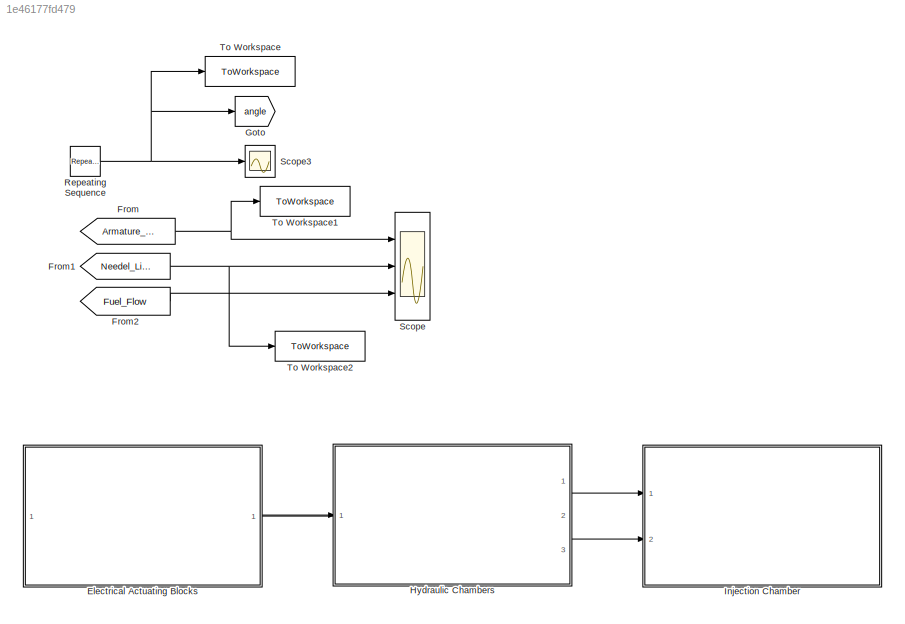
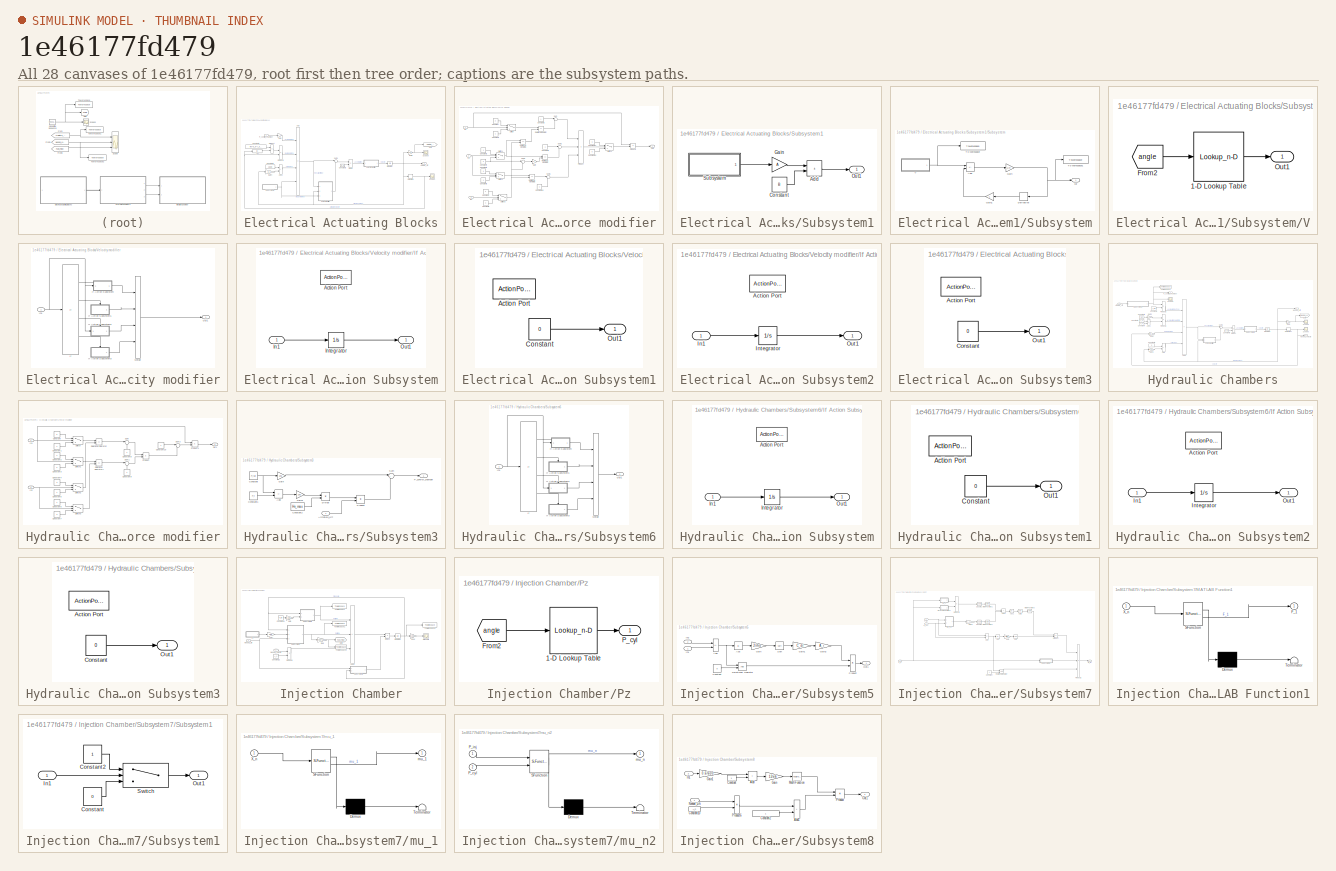
[diagram: thumbnail index - all 28 canvases of the model, root first then tree order]
MODEL slx_1e46177fd479
KIND model
CONFIG AbsTol = auto
CONFIG EnableMultiTasking = off
CONFIG FixedStep = 1e-6
CONFIG MaxStep = auto
CONFIG MinStep = auto
CONFIG RelTol = 1e-3
CONFIG SampleTimeConstraint = Unconstrained
CONFIG Solver = FixedStepAuto
CONFIG SolverName = FixedStepAuto
CONFIG StartTime = 0.0
CONFIG StopTime = 0.02
BLOCK [SubSystem] Electrical Actuating Blocks
  PortSchema = {"entries":[{"content":{"sides":[{"content":{"connectorIds":[]},"type":"ConnectorPlacement.EquallySpacedRectSide","uuid":"3ba77c4c-b8ba-4d77-9d68-8710a2d773ab"},{"content":{"connectorIds":["In1","Out1"],"side":"RIGHT"},"type":"ConnectorPlacement.EquallySpacedRectSide","uuid":"fd57f4f6-7259-4663-815b-091bcd4e1737"},{"content":{"connectorIds":[],"side":"TOP"},"type":"ConnectorPlacement.EquallySpaced...<+243ch>
  Ports = [1, 1]
  RequestExecContextInheritance = off
BLOCK [Abs] Electrical Actuating Blocks/Abs
  SaturateOnIntegerOverflow = off
BLOCK [Sum] Electrical Actuating Blocks/Add
  IconShape = rectangular
  Inputs = +--+
  Ports = [4, 1]
BLOCK [Sum] Electrical Actuating Blocks/Add1
  IconShape = rectangular
  Ports = [2, 1]
BLOCK [Outport] Electrical Actuating Blocks/Armature_Lift
BLOCK [Constant] Electrical Actuating Blocks/Constant1
  Value = rho*b_b*A_p/2
BLOCK [Constant] Electrical Actuating Blocks/Constant2
  Value = 1500
BLOCK [Constant] Electrical Actuating Blocks/Constant3
  Value = m_a
BLOCK [Derivative] Electrical Actuating Blocks/Derivative
BLOCK [Product] Electrical Actuating Blocks/Divide
  Inputs = */
  Ports = [2, 1]
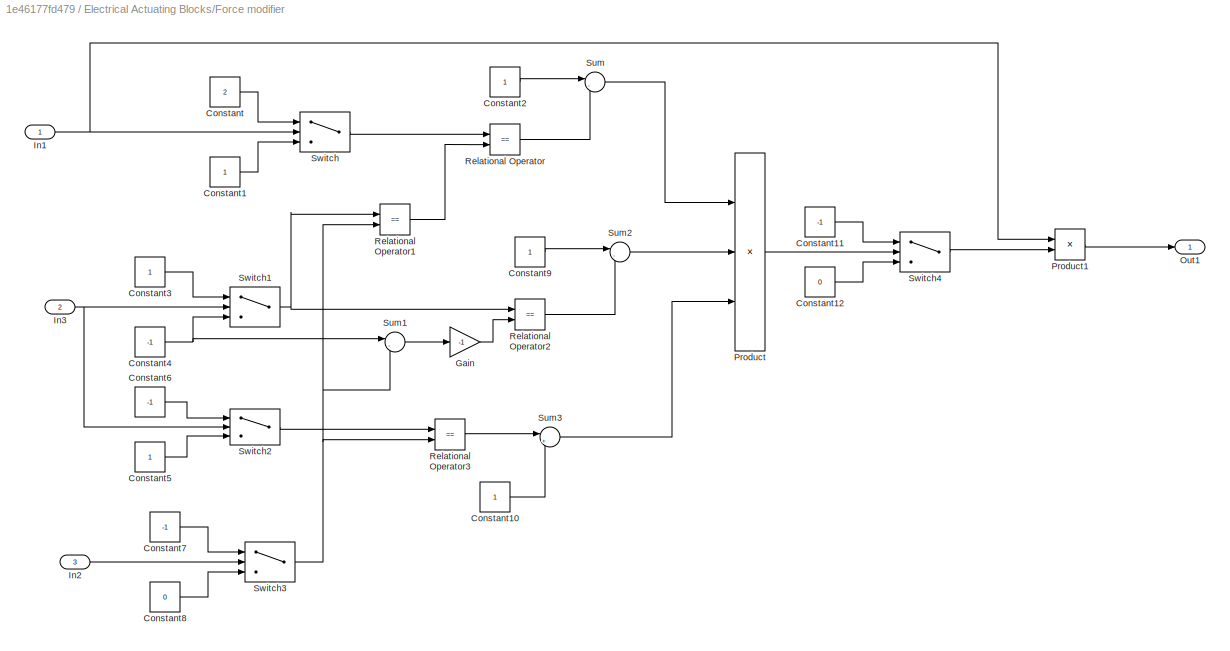
BLOCK [SubSystem] Electrical Actuating Blocks/Force modifier
  Ports = [3, 1]
  RequestExecContextInheritance = off
BLOCK [Constant] Electrical Actuating Blocks/Force modifier/Constant
  Value = 2
BLOCK [Constant] Electrical Actuating Blocks/Force modifier/Constant1
BLOCK [Constant] Electrical Actuating Blocks/Force modifier/Constant10
BLOCK [Constant] Electrical Actuating Blocks/Force modifier/Constant11
  Value = -1
BLOCK [Constant] Electrical Actuating Blocks/Force modifier/Constant12
  Value = 0
BLOCK [Constant] Electrical Actuating Blocks/Force modifier/Constant2
BLOCK [Constant] Electrical Actuating Blocks/Force modifier/Constant3
BLOCK [Constant] Electrical Actuating Blocks/Force modifier/Constant4
  Value = -1
BLOCK [Constant] Electrical Actuating Blocks/Force modifier/Constant5
BLOCK [Constant] Electrical Actuating Blocks/Force modifier/Constant6
  Value = -1
BLOCK [Constant] Electrical Actuating Blocks/Force modifier/Constant7
  Value = -1
BLOCK [Constant] Electrical Actuating Blocks/Force modifier/Constant8
  Value = 0
BLOCK [Constant] Electrical Actuating Blocks/Force modifier/Constant9
BLOCK [Gain] Electrical Actuating Blocks/Force modifier/Gain
  Gain = -1
BLOCK [Inport] Electrical Actuating Blocks/Force modifier/In1
BLOCK [Inport] Electrical Actuating Blocks/Force modifier/In2
  Port = 3
BLOCK [Inport] Electrical Actuating Blocks/Force modifier/In3
  Port = 2
BLOCK [Outport] Electrical Actuating Blocks/Force modifier/Out1
BLOCK [Product] Electrical Actuating Blocks/Force modifier/Product
  Inputs = 3
  Ports = [3, 1]
BLOCK [Product] Electrical Actuating Blocks/Force modifier/Product1
  Ports = [2, 1]
BLOCK [RelationalOperator] Electrical Actuating Blocks/Force modifier/Relational Operator
  InputSameDT = off
  Operator = ==
  OutDataTypeStr = boolean
  Ports = [2, 1]
  RndMeth = Simplest
BLOCK [RelationalOperator] Electrical Actuating Blocks/Force modifier/Relational Operator1
  InputSameDT = off
  Operator = ==
  OutDataTypeStr = boolean
  Ports = [2, 1]
  RndMeth = Simplest
BLOCK [RelationalOperator] Electrical Actuating Blocks/Force modifier/Relational Operator2
  InputSameDT = off
  Operator = ==
  OutDataTypeStr = boolean
  Ports = [2, 1]
  RndMeth = Simplest
BLOCK [RelationalOperator] Electrical Actuating Blocks/Force modifier/Relational Operator3
  InputSameDT = off
  Operator = ==
  OutDataTypeStr = boolean
  Ports = [2, 1]
  RndMeth = Simplest
BLOCK [Sum] Electrical Actuating Blocks/Force modifier/Sum
  Inputs = |-+
  Ports = [2, 1]
BLOCK [Sum] Electrical Actuating Blocks/Force modifier/Sum1
  Inputs = |-+
  Ports = [2, 1]
BLOCK [Sum] Electrical Actuating Blocks/Force modifier/Sum2
  Inputs = |-+
  Ports = [2, 1]
BLOCK [Sum] Electrical Actuating Blocks/Force modifier/Sum3
  Inputs = |+-
  Ports = [2, 1]
BLOCK [Switch] Electrical Actuating Blocks/Force modifier/Switch
  Criteria = u2 > Threshold
  InputSameDT = off
  SaturateOnIntegerOverflow = off
BLOCK [Switch] Electrical Actuating Blocks/Force modifier/Switch1
  Criteria = u2 > Threshold
  InputSameDT = off
  SaturateOnIntegerOverflow = off
BLOCK [Switch] Electrical Actuating Blocks/Force modifier/Switch2
  InputSameDT = off
  SaturateOnIntegerOverflow = off
  Threshold = Hv_max
BLOCK [Switch] Electrical Actuating Blocks/Force modifier/Switch3
  Criteria = u2 > Threshold
  InputSameDT = off
  SaturateOnIntegerOverflow = off
BLOCK [Switch] Electrical Actuating Blocks/Force modifier/Switch4
  InputSameDT = off
  SaturateOnIntegerOverflow = off
BLOCK [Gain] Electrical Actuating Blocks/Gain
  Gain = A_v
BLOCK [Gain] Electrical Actuating Blocks/Gain4
  Gain = K_v
BLOCK [Goto] Electrical Actuating Blocks/Goto
  GotoTag = Armature_Lift
  TagVisibility = global
BLOCK [Integrator] Electrical Actuating Blocks/Integrator
  LimitOutput = on
  LowerSaturationLimit = 0
  Ports = [1, 1]
  UpperSaturationLimit = Hv_max
BLOCK [Inport] Electrical Actuating Blocks/P_control_chamber
BLOCK [Product] Electrical Actuating Blocks/Product
  Ports = [2, 1]
BLOCK [Product] Electrical Actuating Blocks/Product1
  Ports = [2, 1]
BLOCK [Scope] Electrical Actuating Blocks/Scope1
  Floating = off
  NumInputPorts = 1
  Ports = [1]
  ScopeSpecificationString = Simulink.scopes.TimeScopeBlockCfg('CurrentConfiguration', extmgr.ConfigurationSet(extmgr.Configuration('Core','General UI',true),extmgr.Configuration('Core','Source UI',true),extmgr.Configuration('Sources','WiredSimulink',true,'DataLoggingVariableName','ScopeData8'),extmgr.Configuration('Visuals','Time Domain',true,'SerializedDisplays',{struct('MinYLimReal','-1.00036','MaxYLimReal','1.97766','YLab...<+1412ch>
BLOCK [Scope] Electrical Actuating Blocks/Scope9
  Floating = off
  NumInputPorts = 1
  Ports = [1]
  ScopeSpecificationString = Simulink.scopes.TimeScopeBlockCfg('CurrentConfiguration', extmgr.ConfigurationSet(extmgr.Configuration('Core','General UI',true),extmgr.Configuration('Core','Source UI',true),extmgr.Configuration('Sources','WiredSimulink',true,'DataLoggingVariableName','ScopeData9'),extmgr.Configuration('Visuals','Time Domain',true,'SerializedDisplays',{struct('MinYLimReal','-0.065','MaxYLimReal','0.585','YLabelRe...<+1429ch>
BLOCK [SubSystem] Electrical Actuating Blocks/Subsystem1
  Ports = [0, 1]
  RequestExecContextInheritance = off
BLOCK [Sum] Electrical Actuating Blocks/Subsystem1/Add
  IconShape = rectangular
  Ports = [2, 1]
BLOCK [Constant] Electrical Actuating Blocks/Subsystem1/Constant
  Value = B
BLOCK [Gain] Electrical Actuating Blocks/Subsystem1/Gain
  Gain = A
BLOCK [Outport] Electrical Actuating Blocks/Subsystem1/Out1
BLOCK [SubSystem] Electrical Actuating Blocks/Subsystem1/Subsystem
  Ports = [0, 1]
  RequestExecContextInheritance = off
BLOCK [Sum] Electrical Actuating Blocks/Subsystem1/Subsystem/Add
  IconShape = rectangular
  Inputs = +-
  Ports = [2, 1]
BLOCK [Derivative] Electrical Actuating Blocks/Subsystem1/Subsystem/Derivative
BLOCK [Gain] Electrical Actuating Blocks/Subsystem1/Subsystem/Gain
  Gain = 1/R
BLOCK [Gain] Electrical Actuating Blocks/Subsystem1/Subsystem/Gain1
  Gain = L
BLOCK [ToWorkspace] Electrical Actuating Blocks/Subsystem1/Subsystem/To Workspace
  FixptAsFi = on
  MaxDataPoints = inf
  Ports = [1]
  SampleTime = -1
  SaveFormat = Timeseries
  VariableName = V
BLOCK [ToWorkspace] Electrical Actuating Blocks/Subsystem1/Subsystem/To Workspace1
  FixptAsFi = on
  MaxDataPoints = inf
  Ports = [1]
  SampleTime = -1
  SaveFormat = Timeseries
  VariableName = I
BLOCK [SubSystem] Electrical Actuating Blocks/Subsystem1/Subsystem/V
  Ports = [0, 1]
  RequestExecContextInheritance = off
BLOCK [Lookup_n-D] Electrical Actuating Blocks/Subsystem1/Subsystem/V/1-D Lookup Table
  BreakpointsForDimension1 = angl_inj
  InternalRulePriority = Speed
  NumberOfTableDimensions = 1
  Ports = [1, 1]
  RndMeth = Simplest
  Table = V_inj
BLOCK [From] Electrical Actuating Blocks/Subsystem1/Subsystem/V/From2
  GotoTag = angle
  TagVisibility = global
BLOCK [Outport] Electrical Actuating Blocks/Subsystem1/Subsystem/V/Out1
BLOCK [Outport] Electrical Actuating Blocks/Subsystem1/Subsystem/cur
BLOCK [Sum] Electrical Actuating Blocks/Sum1
  Inputs = |++
  Ports = [2, 1]
BLOCK [SubSystem] Electrical Actuating Blocks/Velocity modifier
  Ports = [1, 1]
  RequestExecContextInheritance = off
BLOCK [If] Electrical Actuating Blocks/Velocity modifier/If
  ElseIfExpressions = u1 == 0, u1 > 0
  IfExpression = u1 < 0
  Ports = [1, 4]
BLOCK [SubSystem] Electrical Actuating Blocks/Velocity modifier/If Action Subsystem
  Ports = [1, 1, 0, 0, 0, 0, 0, 1]
  RequestExecContextInheritance = off
  TreatAsAtomicUnit = on
BLOCK [ActionPort] Electrical Actuating Blocks/Velocity modifier/If Action Subsystem/Action Port
  ActionPortLabel = if(u1 < 0)
BLOCK [Inport] Electrical Actuating Blocks/Velocity modifier/If Action Subsystem/In1
BLOCK [Integrator] Electrical Actuating Blocks/Velocity modifier/If Action Subsystem/Integrator
  Ports = [1, 1]
BLOCK [Outport] Electrical Actuating Blocks/Velocity modifier/If Action Subsystem/Out1
BLOCK [SubSystem] Electrical Actuating Blocks/Velocity modifier/If Action Subsystem1
  Ports = [0, 1, 0, 0, 0, 0, 0, 1]
  RequestExecContextInheritance = off
  TreatAsAtomicUnit = on
BLOCK [ActionPort] Electrical Actuating Blocks/Velocity modifier/If Action Subsystem1/Action Port
  ActionPortLabel = elseif(u1 == 0)
BLOCK [Constant] Electrical Actuating Blocks/Velocity modifier/If Action Subsystem1/Constant
  Value = 0
BLOCK [Outport] Electrical Actuating Blocks/Velocity modifier/If Action Subsystem1/Out1
BLOCK [SubSystem] Electrical Actuating Blocks/Velocity modifier/If Action Subsystem2
  Ports = [1, 1, 0, 0, 0, 0, 0, 1]
  RequestExecContextInheritance = off
  TreatAsAtomicUnit = on
BLOCK [ActionPort] Electrical Actuating Blocks/Velocity modifier/If Action Subsystem2/Action Port
  ActionPortLabel = elseif( u1 > 0)
BLOCK [Inport] Electrical Actuating Blocks/Velocity modifier/If Action Subsystem2/In1
BLOCK [Integrator] Electrical Actuating Blocks/Velocity modifier/If Action Subsystem2/Integrator
  Ports = [1, 1]
BLOCK [Outport] Electrical Actuating Blocks/Velocity modifier/If Action Subsystem2/Out1
BLOCK [SubSystem] Electrical Actuating Blocks/Velocity modifier/If Action Subsystem3
  Ports = [0, 1, 0, 0, 0, 0, 0, 1]
  RequestExecContextInheritance = off
  TreatAsAtomicUnit = on
BLOCK [ActionPort] Electrical Actuating Blocks/Velocity modifier/If Action Subsystem3/Action Port
  ActionPortLabel = else
BLOCK [Constant] Electrical Actuating Blocks/Velocity modifier/If Action Subsystem3/Constant
  Value = 0
BLOCK [Outport] Electrical Actuating Blocks/Velocity modifier/If Action Subsystem3/Out1
BLOCK [Inport] Electrical Actuating Blocks/Velocity modifier/In1
BLOCK [Merge] Electrical Actuating Blocks/Velocity modifier/Merge
  Inputs = 4
  Ports = [4, 1]
BLOCK [Outport] Electrical Actuating Blocks/Velocity modifier/Out1
BLOCK [Gain] Electrical Actuating Blocks/in mm
  Gain = 1e3
BLOCK [From] From
  GotoTag = Armature_Lift
  TagVisibility = global
BLOCK [From] From1
  GotoTag = Needel_Lift
  TagVisibility = global
BLOCK [From] From2
  GotoTag = Fuel_Flow
  TagVisibility = global
BLOCK [Goto] Goto
  GotoTag = angle
  TagVisibility = global
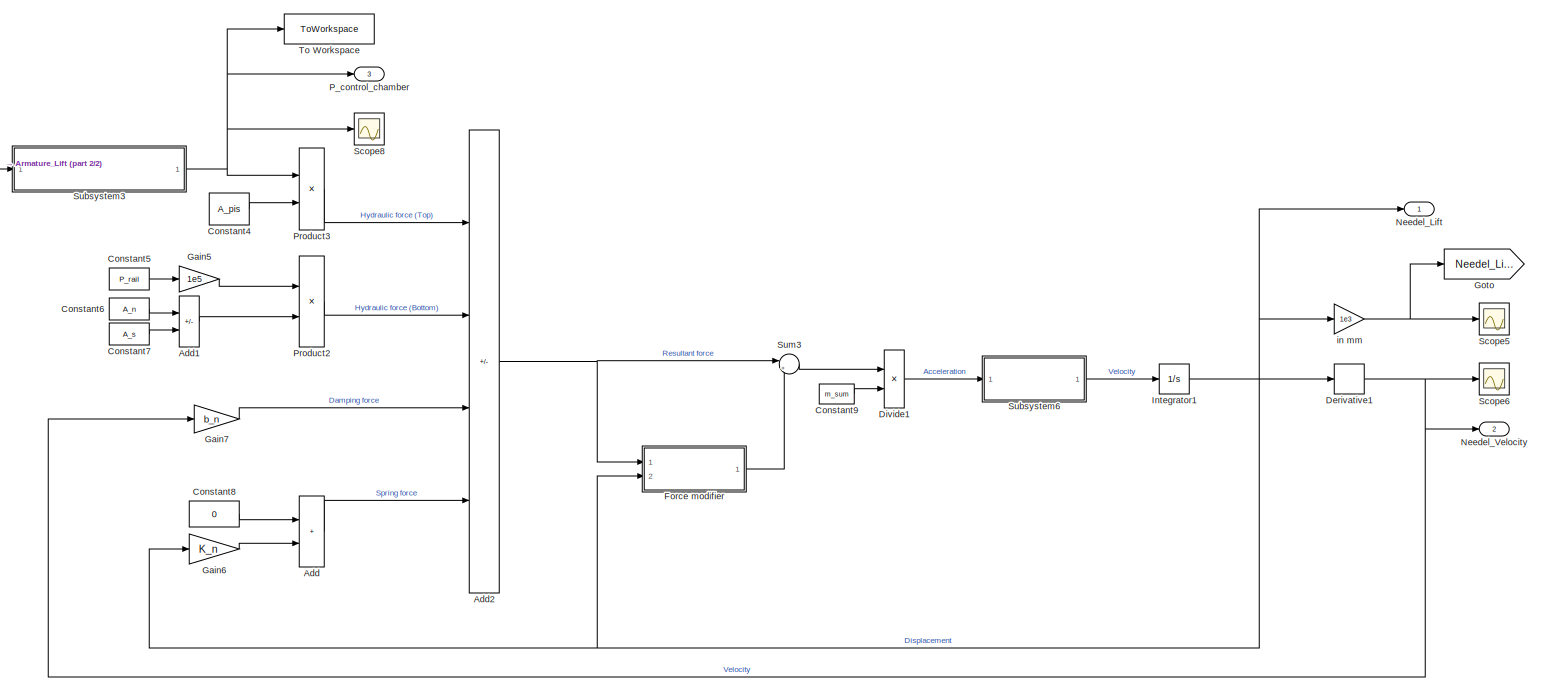
[diagram: Hydraulic Chambers - part 1/2, most of the canvas]
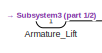
[diagram: Hydraulic Chambers - part 2/2, top left region]
BLOCK [SubSystem] Hydraulic Chambers
  PortSchema = {"entries":[{"content":{"sides":[{"content":{"connectorIds":["Out3","In1"]},"type":"ConnectorPlacement.EquallySpacedRectSide","uuid":"e260e5f4-acfe-4da7-b401-bae8e315cc37"},{"content":{"connectorIds":["Out1","Out2"],"side":"RIGHT"},"type":"ConnectorPlacement.EquallySpacedRectSide","uuid":"01019c56-b8d4-4519-8d57-ed1d2bc069d1"},{"content":{"connectorIds":[],"side":"TOP"},"type":"ConnectorPlacement....<+256ch>
  Ports = [1, 3]
  RequestExecContextInheritance = off
BLOCK [Sum] Hydraulic Chambers/Add
  IconShape = rectangular
  Ports = [2, 1]
BLOCK [Sum] Hydraulic Chambers/Add1
  IconShape = rectangular
  Inputs = +-
  Ports = [2, 1]
BLOCK [Sum] Hydraulic Chambers/Add2
  IconShape = rectangular
  Inputs = -+--
  Ports = [4, 1]
BLOCK [Inport] Hydraulic Chambers/Armature_Lift
BLOCK [Constant] Hydraulic Chambers/Constant4
  Value = A_pis
BLOCK [Constant] Hydraulic Chambers/Constant5
  Value = P_rail
BLOCK [Constant] Hydraulic Chambers/Constant6
  Value = A_n
BLOCK [Constant] Hydraulic Chambers/Constant7
  Value = A_s
BLOCK [Constant] Hydraulic Chambers/Constant8
  Value = 0
BLOCK [Constant] Hydraulic Chambers/Constant9
  Value = m_sum
BLOCK [Derivative] Hydraulic Chambers/Derivative1
BLOCK [Product] Hydraulic Chambers/Divide1
  Inputs = */
  Ports = [2, 1]
BLOCK [SubSystem] Hydraulic Chambers/Force modifier
  Ports = [2, 1]
  RequestExecContextInheritance = off
BLOCK [Constant] Hydraulic Chambers/Force modifier/Constant
  Value = -1
BLOCK [Constant] Hydraulic Chambers/Force modifier/Constant1
BLOCK [Constant] Hydraulic Chambers/Force modifier/Constant10
BLOCK [Constant] Hydraulic Chambers/Force modifier/Constant2
BLOCK [Constant] Hydraulic Chambers/Force modifier/Constant3
  Value = -1
BLOCK [Constant] Hydraulic Chambers/Force modifier/Constant4
  Value = 2
BLOCK [Constant] Hydraulic Chambers/Force modifier/Constant5
BLOCK [Constant] Hydraulic Chambers/Force modifier/Constant6
BLOCK [Constant] Hydraulic Chambers/Force modifier/Constant7
  Value = 2
BLOCK [Constant] Hydraulic Chambers/Force modifier/Constant8
  NameLocation = right
BLOCK [Constant] Hydraulic Chambers/Force modifier/Constant9
  NameLocation = right
BLOCK [Inport] Hydraulic Chambers/Force modifier/In1
BLOCK [Inport] Hydraulic Chambers/Force modifier/In2
  Port = 2
BLOCK [Outport] Hydraulic Chambers/Force modifier/Out1
BLOCK [Product] Hydraulic Chambers/Force modifier/Product
  Ports = [2, 1]
BLOCK [Product] Hydraulic Chambers/Force modifier/Product1
  Ports = [2, 1]
BLOCK [RelationalOperator] Hydraulic Chambers/Force modifier/Relational Operator
  InputSameDT = off
  Operator = ==
  OutDataTypeStr = boolean
  Ports = [2, 1]
  RndMeth = Simplest
BLOCK [RelationalOperator] Hydraulic Chambers/Force modifier/Relational Operator1
  InputSameDT = off
  Operator = ==
  OutDataTypeStr = boolean
  Ports = [2, 1]
  RndMeth = Simplest
BLOCK [Sum] Hydraulic Chambers/Force modifier/Sum
  Inputs = |+-
  Ports = [2, 1]
BLOCK [Sum] Hydraulic Chambers/Force modifier/Sum1
  Inputs = |+-
  Ports = [2, 1]
BLOCK [Sum] Hydraulic Chambers/Force modifier/Sum2
  Inputs = |-+
  Ports = [2, 1]
BLOCK [Switch] Hydraulic Chambers/Force modifier/Switch
  Criteria = u2 > Threshold
  InputSameDT = off
  SaturateOnIntegerOverflow = off
BLOCK [Switch] Hydraulic Chambers/Force modifier/Switch1
  Criteria = u2 > Threshold
  InputSameDT = off
  SaturateOnIntegerOverflow = off
BLOCK [Switch] Hydraulic Chambers/Force modifier/Switch2
  Criteria = u2 > Threshold
  InputSameDT = off
  SaturateOnIntegerOverflow = off
BLOCK [Switch] Hydraulic Chambers/Force modifier/Switch3
  InputSameDT = off
  SaturateOnIntegerOverflow = off
  Threshold = Hv_max
BLOCK [Gain] Hydraulic Chambers/Gain5
  Gain = 1e5
BLOCK [Gain] Hydraulic Chambers/Gain6
  Gain = K_n
BLOCK [Gain] Hydraulic Chambers/Gain7
  Gain = b_n
BLOCK [Goto] Hydraulic Chambers/Goto
  GotoTag = Needel_Lift
  TagVisibility = global
BLOCK [Integrator] Hydraulic Chambers/Integrator1
  LimitOutput = on
  LowerSaturationLimit = 0
  Ports = [1, 1]
BLOCK [Outport] Hydraulic Chambers/Needel_Lift
BLOCK [Outport] Hydraulic Chambers/Needel_Velocity
  Port = 2
BLOCK [Outport] Hydraulic Chambers/P_control_chamber
  Port = 3
BLOCK [Product] Hydraulic Chambers/Product2
  Ports = [2, 1]
BLOCK [Product] Hydraulic Chambers/Product3
  Ports = [2, 1]
BLOCK [Scope] Hydraulic Chambers/Scope5
  Floating = off
  NumInputPorts = 1
  Ports = [1]
  ScopeSpecificationString = Simulink.scopes.TimeScopeBlockCfg('CurrentConfiguration', extmgr.ConfigurationSet(extmgr.Configuration('Core','General UI',true),extmgr.Configuration('Core','Source UI',true),extmgr.Configuration('Sources','WiredSimulink',true,'DataLoggingVariableName','ScopeData10'),extmgr.Configuration('Visuals','Time Domain',true,'SerializedDisplays',{struct('MinYLimReal','-0.0412','MaxYLimReal','0.46111','YLab...<+1445ch>
BLOCK [Scope] Hydraulic Chambers/Scope6
  Floating = off
  NumInputPorts = 1
  Ports = [1]
  ScopeSpecificationString = Simulink.scopes.TimeScopeBlockCfg('CurrentConfiguration', extmgr.ConfigurationSet(extmgr.Configuration('Core','General UI',true),extmgr.Configuration('Core','Source UI',true),extmgr.Configuration('Sources','WiredSimulink',true,'DataLoggingVariableName','ScopeData1'),extmgr.Configuration('Visuals','Time Domain',true,'SerializedDisplays',{struct('MinYLimReal','-13.18917','MaxYLimReal','5.63718','YLa...<+1371ch>
BLOCK [Scope] Hydraulic Chambers/Scope8
  Floating = off
  NumInputPorts = 1
  Ports = [1]
  ScopeSpecificationString = Simulink.scopes.TimeScopeBlockCfg('CurrentConfiguration', extmgr.ConfigurationSet(extmgr.Configuration('Core','General UI',true),extmgr.Configuration('Core','Source UI',true),extmgr.Configuration('Sources','WiredSimulink',true,'DataLoggingVariableName','ScopeData11'),extmgr.Configuration('Visuals','Time Domain',true,'SerializedDisplays',{struct('MinYLimReal','-23187500.00000','MaxYLimReal','211189...<+1447ch>
BLOCK [SubSystem] Hydraulic Chambers/Subsystem3
  Ports = [1, 1]
  RequestExecContextInheritance = off
BLOCK [Sum] Hydraulic Chambers/Subsystem3/Add
  IconShape = rectangular
  Inputs = -+
  Ports = [2, 1]
BLOCK [Inport] Hydraulic Chambers/Subsystem3/Armature_Lift
BLOCK [Constant] Hydraulic Chambers/Subsystem3/Constant
  Value = P_rail
BLOCK [Constant] Hydraulic Chambers/Subsystem3/Constant1
  Value = P_t
BLOCK [Constant] Hydraulic Chambers/Subsystem3/Constant2
  Value = Hv_max
BLOCK [Product] Hydraulic Chambers/Subsystem3/Divide
  Inputs = */
  Ports = [2, 1]
BLOCK [Gain] Hydraulic Chambers/Subsystem3/Gain
  Gain = 1e5
BLOCK [Gain] Hydraulic Chambers/Subsystem3/Gain1
  Gain = 1e5
BLOCK [Outport] Hydraulic Chambers/Subsystem3/P_control_chamber
BLOCK [Product] Hydraulic Chambers/Subsystem3/Product
  Ports = [2, 1]
BLOCK [Sum] Hydraulic Chambers/Subsystem3/Sum
  Inputs = |++
  Ports = [2, 1]
BLOCK [SubSystem] Hydraulic Chambers/Subsystem6
  Ports = [1, 1]
  RequestExecContextInheritance = off
BLOCK [If] Hydraulic Chambers/Subsystem6/If
  ElseIfExpressions = u1 == 0, u1 > 0
  IfExpression = u1 < 0
  Ports = [1, 4]
BLOCK [SubSystem] Hydraulic Chambers/Subsystem6/If Action Subsystem
  Ports = [1, 1, 0, 0, 0, 0, 0, 1]
  RequestExecContextInheritance = off
  TreatAsAtomicUnit = on
BLOCK [ActionPort] Hydraulic Chambers/Subsystem6/If Action Subsystem/Action Port
  ActionPortLabel = if(u1 < 0)
BLOCK [Inport] Hydraulic Chambers/Subsystem6/If Action Subsystem/In1
BLOCK [Integrator] Hydraulic Chambers/Subsystem6/If Action Subsystem/Integrator
  Ports = [1, 1]
BLOCK [Outport] Hydraulic Chambers/Subsystem6/If Action Subsystem/Out1
BLOCK [SubSystem] Hydraulic Chambers/Subsystem6/If Action Subsystem1
  Ports = [0, 1, 0, 0, 0, 0, 0, 1]
  RequestExecContextInheritance = off
  TreatAsAtomicUnit = on
BLOCK [ActionPort] Hydraulic Chambers/Subsystem6/If Action Subsystem1/Action Port
  ActionPortLabel = elseif(u1 == 0)
BLOCK [Constant] Hydraulic Chambers/Subsystem6/If Action Subsystem1/Constant
  Value = 0
BLOCK [Outport] Hydraulic Chambers/Subsystem6/If Action Subsystem1/Out1
BLOCK [SubSystem] Hydraulic Chambers/Subsystem6/If Action Subsystem2
  Ports = [1, 1, 0, 0, 0, 0, 0, 1]
  RequestExecContextInheritance = off
  TreatAsAtomicUnit = on
BLOCK [ActionPort] Hydraulic Chambers/Subsystem6/If Action Subsystem2/Action Port
  ActionPortLabel = elseif( u1 > 0)
BLOCK [Inport] Hydraulic Chambers/Subsystem6/If Action Subsystem2/In1
BLOCK [Integrator] Hydraulic Chambers/Subsystem6/If Action Subsystem2/Integrator
  Ports = [1, 1]
BLOCK [Outport] Hydraulic Chambers/Subsystem6/If Action Subsystem2/Out1
BLOCK [SubSystem] Hydraulic Chambers/Subsystem6/If Action Subsystem3
  Ports = [0, 1, 0, 0, 0, 0, 0, 1]
  RequestExecContextInheritance = off
  TreatAsAtomicUnit = on
BLOCK [ActionPort] Hydraulic Chambers/Subsystem6/If Action Subsystem3/Action Port
  ActionPortLabel = else
BLOCK [Constant] Hydraulic Chambers/Subsystem6/If Action Subsystem3/Constant
  Value = 0
BLOCK [Outport] Hydraulic Chambers/Subsystem6/If Action Subsystem3/Out1
BLOCK [Inport] Hydraulic Chambers/Subsystem6/In1
BLOCK [Merge] Hydraulic Chambers/Subsystem6/Merge
  Inputs = 4
  Ports = [4, 1]
BLOCK [Outport] Hydraulic Chambers/Subsystem6/Out1
BLOCK [Sum] Hydraulic Chambers/Sum3
  Inputs = |++
  Ports = [2, 1]
BLOCK [ToWorkspace] Hydraulic Chambers/To Workspace
  FixptAsFi = on
  MaxDataPoints = inf
  Ports = [1]
  SampleTime = -1
  SaveFormat = Timeseries
  VariableName = camera
BLOCK [Gain] Hydraulic Chambers/in mm
  Gain = 1e3
BLOCK [SubSystem] Injection Chamber
  Ports = [2]
  RequestExecContextInheritance = off
BLOCK [Sum] Injection Chamber/Add3
  IconShape = rectangular
  Inputs = +--
  Ports = [3, 1]
BLOCK [Constant] Injection Chamber/Constant11
  Value = P_rail
BLOCK [Constant] Injection Chamber/Constant12
  Value = A_n
BLOCK [Product] Injection Chamber/Divide2
  Inputs = */
  Ports = [2, 1]
BLOCK [Gain] Injection Chamber/Gain
  Gain = 1e5
BLOCK [Gain] Injection Chamber/Gain1
  Gain = 1e5
BLOCK [Goto] Injection Chamber/Goto
  GotoTag = Fuel_Flow
  TagVisibility = global
BLOCK [Integrator] Injection Chamber/Integrator2
  InitialCondition = (P_rail)*1e5
  LimitOutput = on
  LowerSaturationLimit = 1e5
  Ports = [1, 1]
  UpperSaturationLimit = (P_rail)*1e5
BLOCK [Inport] Injection Chamber/Needel_Lift
BLOCK [Inport] Injection Chamber/Needel_Velocity
  Port = 2
BLOCK [Scope] Injection Chamber/Pressure
  Floating = off
  NumInputPorts = 1
  Ports = [1]
  ScopeSpecificationString = Simulink.scopes.TimeScopeBlockCfg('CurrentConfiguration', extmgr.ConfigurationSet(extmgr.Configuration('Core','General UI',true),extmgr.Configuration('Core','Source UI',true),extmgr.Configuration('Sources','WiredSimulink',true,'DataLoggingVariableName','ScopeData14'),extmgr.Configuration('Visuals','Time Domain',true,'SerializedDisplays',{struct('MinYLimReal','-223.875','MaxYLimReal','2024.875','YL...<+1439ch>
BLOCK [Product] Injection Chamber/Product4
  Ports = [2, 1]
BLOCK [SubSystem] Injection Chamber/Pz
  Ports = [0, 1]
  RequestExecContextInheritance = off
BLOCK [Lookup_n-D] Injection Chamber/Pz/1-D Lookup Table
  BreakpointsForDimension1 = angl
  InternalRulePriority = Speed
  NumberOfTableDimensions = 1
  Ports = [1, 1]
  RndMeth = Simplest
  Table = P_cyl
BLOCK [From] Injection Chamber/Pz/From2
  GotoTag = angle
  TagVisibility = global
BLOCK [Outport] Injection Chamber/Pz/P_cyl
BLOCK [SubSystem] Injection Chamber/Subsystem5
  Ports = [2, 1]
  RequestExecContextInheritance = off
BLOCK [Abs] Injection Chamber/Subsystem5/Abs
  SaturateOnIntegerOverflow = off
BLOCK [Sum] Injection Chamber/Subsystem5/Add
  IconShape = rectangular
  Inputs = +-
  Ports = [2, 1]
BLOCK [Constant] Injection Chamber/Subsystem5/Constant
  Value = 0
BLOCK [Gain] Injection Chamber/Subsystem5/Gain
  Gain = 2/rho
BLOCK [Gain] Injection Chamber/Subsystem5/Gain1
  Gain = C_di
BLOCK [Gain] Injection Chamber/Subsystem5/Gain2
  Gain = A_i
BLOCK [Inport] Injection Chamber/Subsystem5/In1
BLOCK [Inport] Injection Chamber/Subsystem5/In2
  Port = 2
BLOCK [Outport] Injection Chamber/Subsystem5/Out1
BLOCK [Product] Injection Chamber/Subsystem5/Product
  Ports = [2, 1]
BLOCK [RelationalOperator] Injection Chamber/Subsystem5/Relational Operator
  InputSameDT = off
  OutDataTypeStr = boolean
  Ports = [2, 1]
  RndMeth = Simplest
BLOCK [Sqrt] Injection Chamber/Subsystem5/Sqrt
BLOCK [SubSystem] Injection Chamber/Subsystem7
  Ports = [3, 1]
  RequestExecContextInheritance = off
BLOCK [Abs] Injection Chamber/Subsystem7/Abs
  SaturateOnIntegerOverflow = off
BLOCK [Abs] Injection Chamber/Subsystem7/Abs1
  SaturateOnIntegerOverflow = off
BLOCK [Sum] Injection Chamber/Subsystem7/Add
  IconShape = rectangular
  Inputs = +-
  Ports = [2, 1]
BLOCK [Sum] Injection Chamber/Subsystem7/Add1
  IconShape = rectangular
  Ports = [2, 1]
BLOCK [Constant] Injection Chamber/Subsystem7/Constant
  Value = 0
BLOCK [Gain] Injection Chamber/Subsystem7/Gain
  Gain = 2/rho
BLOCK [Gain] Injection Chamber/Subsystem7/Gain3
  Gain = A_cyl
BLOCK [SubSystem] Injection Chamber/Subsystem7/MATLAB Function1
  ErrorFcn = Stateflow.Translate.translate
  PermitHierarchicalResolution = ExplicitOnly
  Ports = [1, 1]
  RequestExecContextInheritance = off
  SFBlockType = MATLAB Function
  TreatAsAtomicUnit = on
BLOCK [Demux] Injection Chamber/Subsystem7/MATLAB Function1/ Demux 
  Outputs = 1
  Ports = [1, 1]
BLOCK [S-Function] Injection Chamber/Subsystem7/MATLAB Function1/ SFunction 
  EnableBusSupport = on
  FunctionName = sf_sfun
  PortCounts = [1 2]
  Ports = [1, 2]
  SFcnIsStateOwnerBlock = off
  SFunctionDeploymentMode = off
  Tag = Stateflow S-Function 4
BLOCK [Terminator] Injection Chamber/Subsystem7/MATLAB Function1/ Terminator 
BLOCK [Outport] Injection Chamber/Subsystem7/MATLAB Function1/F_1
BLOCK [Inport] Injection Chamber/Subsystem7/MATLAB Function1/X_n
BLOCK [Math] Injection Chamber/Subsystem7/Math Function1
  Operator = reciprocal
  Ports = [1, 1]
  RndMeth = Zero
  SignedPower = on
BLOCK [Math] Injection Chamber/Subsystem7/Math Function2
  Operator = reciprocal
  Ports = [1, 1]
  RndMeth = Zero
  SignedPower = on
BLOCK [Math] Injection Chamber/Subsystem7/Math Function3
  Operator = reciprocal
  Ports = [1, 1]
  RndMeth = Zero
  SignedPower = on
BLOCK [Inport] Injection Chamber/Subsystem7/P_cyl
  Port = 2
BLOCK [Inport] Injection Chamber/Subsystem7/P_inj
BLOCK [Product] Injection Chamber/Subsystem7/Product
  Ports = [2, 1]
BLOCK [Product] Injection Chamber/Subsystem7/Product2
  Inputs = 3
  Ports = [3, 1]
BLOCK [Product] Injection Chamber/Subsystem7/Product3
  Ports = [2, 1]
BLOCK [Outport] Injection Chamber/Subsystem7/Q_inj
BLOCK [RelationalOperator] Injection Chamber/Subsystem7/Relational Operator
  InputSameDT = off
  OutDataTypeStr = boolean
  Ports = [2, 1]
  RndMeth = Simplest
BLOCK [Sqrt] Injection Chamber/Subsystem7/Sqrt
BLOCK [Sqrt] Injection Chamber/Subsystem7/Sqrt1
BLOCK [Math] Injection Chamber/Subsystem7/Square1
  Operator = square
  Ports = [1, 1]
BLOCK [Math] Injection Chamber/Subsystem7/Square2
  Operator = square
  Ports = [1, 1]
BLOCK [SubSystem] Injection Chamber/Subsystem7/Subsystem1
  Ports = [1, 1]
  RequestExecContextInheritance = off
BLOCK [Constant] Injection Chamber/Subsystem7/Subsystem1/Constant
  Value = 0
BLOCK [Constant] Injection Chamber/Subsystem7/Subsystem1/Constant2
BLOCK [Inport] Injection Chamber/Subsystem7/Subsystem1/In1
BLOCK [Outport] Injection Chamber/Subsystem7/Subsystem1/Out1
BLOCK [Switch] Injection Chamber/Subsystem7/Subsystem1/Switch
  Criteria = u2 > Threshold
  InputSameDT = off
  SaturateOnIntegerOverflow = off
BLOCK [Inport] Injection Chamber/Subsystem7/X_n
  Port = 3
BLOCK [SubSystem] Injection Chamber/Subsystem7/mu_1
  ErrorFcn = Stateflow.Translate.translate
  PermitHierarchicalResolution = ExplicitOnly
  Ports = [1, 1]
  RequestExecContextInheritance = off
  SFBlockType = MATLAB Function
  TreatAsAtomicUnit = on
BLOCK [Demux] Injection Chamber/Subsystem7/mu_1/ Demux 
  Outputs = 1
  Ports = [1, 1]
BLOCK [S-Function] Injection Chamber/Subsystem7/mu_1/ SFunction 
  EnableBusSupport = on
  FunctionName = sf_sfun
  PortCounts = [1 2]
  Ports = [1, 2]
  SFcnIsStateOwnerBlock = off
  SFunctionDeploymentMode = off
  Tag = Stateflow S-Function 1
BLOCK [Terminator] Injection Chamber/Subsystem7/mu_1/ Terminator 
BLOCK [Inport] Injection Chamber/Subsystem7/mu_1/X_n
BLOCK [Outport] Injection Chamber/Subsystem7/mu_1/mu_1
BLOCK [SubSystem] Injection Chamber/Subsystem7/mu_n2
  ErrorFcn = Stateflow.Translate.translate
  PermitHierarchicalResolution = ExplicitOnly
  Ports = [2, 1]
  RequestExecContextInheritance = off
  SFBlockType = MATLAB Function
  TreatAsAtomicUnit = on
BLOCK [Demux] Injection Chamber/Subsystem7/mu_n2/ Demux 
  Outputs = 1
  Ports = [1, 1]
BLOCK [S-Function] Injection Chamber/Subsystem7/mu_n2/ SFunction 
  EnableBusSupport = on
  FunctionName = sf_sfun
  PortCounts = [2 2]
  Ports = [2, 2]
  SFcnIsStateOwnerBlock = off
  SFunctionDeploymentMode = off
  Tag = Stateflow S-Function 5
BLOCK [Terminator] Injection Chamber/Subsystem7/mu_n2/ Terminator 
BLOCK [Inport] Injection Chamber/Subsystem7/mu_n2/P_cyl
  Port = 2
BLOCK [Inport] Injection Chamber/Subsystem7/mu_n2/P_inj
BLOCK [Outport] Injection Chamber/Subsystem7/mu_n2/mu_n
BLOCK [SubSystem] Injection Chamber/Subsystem8
  Ports = [2, 1]
  RequestExecContextInheritance = off
BLOCK [Sum] Injection Chamber/Subsystem8/Add
  IconShape = rectangular
  Ports = [2, 1]
BLOCK [Sum] Injection Chamber/Subsystem8/Add1
  IconShape = rectangular
  Ports = [2, 1]
BLOCK [Constant] Injection Chamber/Subsystem8/Constant
BLOCK [Constant] Injection Chamber/Subsystem8/Constant10
  Value = A_n
BLOCK [Constant] Injection Chamber/Subsystem8/Constant2
BLOCK [Gain] Injection Chamber/Subsystem8/Gain
  Gain = 12e6
BLOCK [Gain] Injection Chamber/Subsystem8/Gain1
  Gain = 0.6/600
BLOCK [Inport] Injection Chamber/Subsystem8/In1
  Port = 2
BLOCK [Math] Injection Chamber/Subsystem8/Math Function
  Operator = reciprocal
  Ports = [1, 1]
BLOCK [Inport] Injection Chamber/Subsystem8/Needel_Lift
BLOCK [Outport] Injection Chamber/Subsystem8/Out1
BLOCK [Product] Injection Chamber/Subsystem8/Product
  Ports = [2, 1]
BLOCK [Product] Injection Chamber/Subsystem8/Product6
  Ports = [2, 1]
BLOCK [ToWorkspace] Injection Chamber/To Workspace
  FixptAsFi = on
  MaxDataPoints = inf
  Ports = [1]
  SampleTime = -1
  SaveFormat = Timeseries
  VariableName = supply_rate
BLOCK [ToWorkspace] Injection Chamber/To Workspace1
  FixptAsFi = on
  MaxDataPoints = inf
  Ports = [1]
  SampleTime = -1
  SaveFormat = Timeseries
  VariableName = injection_rate
BLOCK [ToWorkspace] Injection Chamber/To Workspace2
  FixptAsFi = on
  MaxDataPoints = inf
  Ports = [1]
  SampleTime = -1
  Save2DSignal = 2-D array (concatenate along first dimension)
  SaveFormat = Timeseries
  VariableName = Fuel
BLOCK [ToWorkspace] Injection Chamber/To Workspace3
  FixptAsFi = on
  MaxDataPoints = inf
  Ports = [1]
  SampleTime = -1
  SaveFormat = Timeseries
  VariableName = akkum
BLOCK [Gain] Injection Chamber/in bar
  Gain = 1e-5
BLOCK [Gain] Injection Chamber/in g//s
  Gain = rho*1e3
BLOCK [Reference] Repeating Sequence  REF=simulink/Sources/Repeating
Sequence
  Ports = [0, 1]
  SourceBlock = simulink/Sources/Repeating\nSequence
  SourceProductBaseCode = SL
  SourceType = Repeating table
BLOCK [Scope] Scope
  Floating = off
  NumInputPorts = 3
  Ports = [3]
  ScopeSpecificationString = Simulink.scopes.TimeScopeBlockCfg('CurrentConfiguration', extmgr.ConfigurationSet(extmgr.Configuration('Core','General UI',true,'FigureColor',[1 1 1]),extmgr.Configuration('Core','Source UI',true),extmgr.Configuration('Sources','WiredSimulink',true,'DataLoggingVariableName','ScopeData16'),extmgr.Configuration('Visuals','Time Domain',true,'SerializedDisplays',{struct('MinYLimReal','-0.065','MaxYLim...<+3401ch>
BLOCK [Scope] Scope3
  Floating = off
  NumInputPorts = 1
  Ports = [1]
  ScopeSpecificationString = Simulink.scopes.TimeScopeBlockCfg('CurrentConfiguration', extmgr.ConfigurationSet(extmgr.Configuration('Core','General UI',true),extmgr.Configuration('Core','Source UI',true),extmgr.Configuration('Sources','WiredSimulink',true,'DataLoggingVariableName','ScopeData3'),extmgr.Configuration('Visuals','Time Domain',true,'SerializedDisplays',{struct('MinYLimReal','-89.85759','MaxYLimReal','808.71835','Y...<+1406ch>
BLOCK [ToWorkspace] To Workspace
  FixptAsFi = on
  MaxDataPoints = inf
  Ports = [1]
  SampleTime = -1
  VariableName = angle
BLOCK [ToWorkspace] To Workspace1
  FixptAsFi = on
  MaxDataPoints = inf
  Ports = [1]
  SampleTime = -1
  SaveFormat = Timeseries
  VariableName = valve
BLOCK [ToWorkspace] To Workspace2
  FixptAsFi = on
  MaxDataPoints = inf
  Ports = [1]
  SampleTime = -1
  SaveFormat = Timeseries
  VariableName = needle
LINE Electrical Actuating Blocks/Abs:1 -> Electrical Actuating Blocks/Product:2
LINE Electrical Actuating Blocks/Add1:1 -> Electrical Actuating Blocks/Add:3
NET Electrical Actuating Blocks/Add:1 -> Electrical Actuating Blocks/Force modifier:1, Electrical Actuating Blocks/Sum1:1
LINE Electrical Actuating Blocks/Constant1:1 -> Electrical Actuating Blocks/Product:1
LINE Electrical Actuating Blocks/Constant2:1 -> Electrical Actuating Blocks/Add1:1
LINE Electrical Actuating Blocks/Constant3:1 -> Electrical Actuating Blocks/Divide:2
NET Electrical Actuating Blocks/Derivative:1 -> Electrical Actuating Blocks/Abs:1, Electrical Actuating Blocks/Product1:2, Electrical Actuating Blocks/Scope1:1
LINE Electrical Actuating Blocks/Divide:1 -> Electrical Actuating Blocks/Velocity modifier:1
LINE Electrical Actuating Blocks/Force modifier/Constant10:1 -> Electrical Actuating Blocks/Force modifier/Sum3:2
LINE Electrical Actuating Blocks/Force modifier/Constant11:1 -> Electrical Actuating Blocks/Force modifier/Switch4:1
LINE Electrical Actuating Blocks/Force modifier/Constant12:1 -> Electrical Actuating Blocks/Force modifier/Switch4:3
LINE Electrical Actuating Blocks/Force modifier/Constant1:1 -> Electrical Actuating Blocks/Force modifier/Switch:3
LINE Electrical Actuating Blocks/Force modifier/Constant2:1 -> Electrical Actuating Blocks/Force modifier/Sum:1
LINE Electrical Actuating Blocks/Force modifier/Constant3:1 -> Electrical Actuating Blocks/Force modifier/Switch1:1
NET Electrical Actuating Blocks/Force modifier/Constant4:1 -> Electrical Actuating Blocks/Force modifier/Sum1:1, Electrical Actuating Blocks/Force modifier/Switch1:3
LINE Electrical Actuating Blocks/Force modifier/Constant5:1 -> Electrical Actuating Blocks/Force modifier/Switch2:3
LINE Electrical Actuating Blocks/Force modifier/Constant6:1 -> Electrical Actuating Blocks/Force modifier/Switch2:1
LINE Electrical Actuating Blocks/Force modifier/Constant7:1 -> Electrical Actuating Blocks/Force modifier/Switch3:1
LINE Electrical Actuating Blocks/Force modifier/Constant8:1 -> Electrical Actuating Blocks/Force modifier/Switch3:3
LINE Electrical Actuating Blocks/Force modifier/Constant9:1 -> Electrical Actuating Blocks/Force modifier/Sum2:1
LINE Electrical Actuating Blocks/Force modifier/Constant:1 -> Electrical Actuating Blocks/Force modifier/Switch:1
LINE Electrical Actuating Blocks/Force modifier/Gain:1 -> Electrical Actuating Blocks/Force modifier/Relational Operator2:2
NET Electrical Actuating Blocks/Force modifier/In1:1 -> Electrical Actuating Blocks/Force modifier/Product1:1, Electrical Actuating Blocks/Force modifier/Switch:2
LINE Electrical Actuating Blocks/Force modifier/In2:1 -> Electrical Actuating Blocks/Force modifier/Switch3:2
NET Electrical Actuating Blocks/Force modifier/In3:1 -> Electrical Actuating Blocks/Force modifier/Switch1:2, Electrical Actuating Blocks/Force modifier/Switch2:2
LINE Electrical Actuating Blocks/Force modifier/Product1:1 -> Electrical Actuating Blocks/Force modifier/Out1:1
LINE Electrical Actuating Blocks/Force modifier/Product:1 -> Electrical Actuating Blocks/Force modifier/Switch4:2
LINE Electrical Actuating Blocks/Force modifier/Relational Operator1:1 -> Electrical Actuating Blocks/Force modifier/Relational Operator:2
LINE Electrical Actuating Blocks/Force modifier/Relational Operator2:1 -> Electrical Actuating Blocks/Force modifier/Sum2:2
LINE Electrical Actuating Blocks/Force modifier/Relational Operator3:1 -> Electrical Actuating Blocks/Force modifier/Sum3:1
LINE Electrical Actuating Blocks/Force modifier/Relational Operator:1 -> Electrical Actuating Blocks/Force modifier/Sum:2
LINE Electrical Actuating Blocks/Force modifier/Sum1:1 -> Electrical Actuating Blocks/Force modifier/Gain:1
LINE Electrical Actuating Blocks/Force modifier/Sum2:1 -> Electrical Actuating Blocks/Force modifier/Product:2
LINE Electrical Actuating Blocks/Force modifier/Sum3:1 -> Electrical Actuating Blocks/Force modifier/Product:3
LINE Electrical Actuating Blocks/Force modifier/Sum:1 -> Electrical Actuating Blocks/Force modifier/Product:1
NET Electrical Actuating Blocks/Force modifier/Switch1:1 -> Electrical Actuating Blocks/Force modifier/Relational Operator1:1, Electrical Actuating Blocks/Force modifier/Relational Operator2:1
LINE Electrical Actuating Blocks/Force modifier/Switch2:1 -> Electrical Actuating Blocks/Force modifier/Relational Operator3:1
NET Electrical Actuating Blocks/Force modifier/Switch3:1 -> Electrical Actuating Blocks/Force modifier/Relational Operator1:2, Electrical Actuating Blocks/Force modifier/Relational Operator3:2, Electrical Actuating Blocks/Force modifier/Sum1:2
LINE Electrical Actuating Blocks/Force modifier/Switch4:1 -> Electrical Actuating Blocks/Force modifier/Product1:2
LINE Electrical Actuating Blocks/Force modifier/Switch:1 -> Electrical Actuating Blocks/Force modifier/Relational Operator:1
LINE Electrical Actuating Blocks/Force modifier:1 -> Electrical Actuating Blocks/Sum1:2
LINE Electrical Actuating Blocks/Gain4:1 -> Electrical Actuating Blocks/Add1:2
LINE Electrical Actuating Blocks/Gain:1 -> Electrical Actuating Blocks/Add:1
NET Electrical Actuating Blocks/Integrator:1 -> Electrical Actuating Blocks/Armature_Lift:1, Electrical Actuating Blocks/Derivative:1, Electrical Actuating Blocks/Force modifier:2, Electrical Actuating Blocks/Gain4:1, Electrical Actuating Blocks/in mm:1
LINE Electrical Actuating Blocks/P_control_chamber:1 -> Electrical Actuating Blocks/Gain:1
LINE Electrical Actuating Blocks/Product1:1 -> Electrical Actuating Blocks/Add:2
LINE Electrical Actuating Blocks/Product:1 -> Electrical Actuating Blocks/Product1:1
LINE Electrical Actuating Blocks/Subsystem1/Add:1 -> Electrical Actuating Blocks/Subsystem1/Out1:1
LINE Electrical Actuating Blocks/Subsystem1/Constant:1 -> Electrical Actuating Blocks/Subsystem1/Add:2
LINE Electrical Actuating Blocks/Subsystem1/Gain:1 -> Electrical Actuating Blocks/Subsystem1/Add:1
LINE Electrical Actuating Blocks/Subsystem1/Subsystem/Add:1 -> Electrical Actuating Blocks/Subsystem1/Subsystem/Gain:1
LINE Electrical Actuating Blocks/Subsystem1/Subsystem/Derivative:1 -> Electrical Actuating Blocks/Subsystem1/Subsystem/Gain1:1
LINE Electrical Actuating Blocks/Subsystem1/Subsystem/Gain1:1 -> Electrical Actuating Blocks/Subsystem1/Subsystem/Add:2
NET Electrical Actuating Blocks/Subsystem1/Subsystem/Gain:1 -> Electrical Actuating Blocks/Subsystem1/Subsystem/Derivative:1, Electrical Actuating Blocks/Subsystem1/Subsystem/To Workspace1:1, Electrical Actuating Blocks/Subsystem1/Subsystem/cur:1
LINE Electrical Actuating Blocks/Subsystem1/Subsystem/V/1-D Lookup Table:1 -> Electrical Actuating Blocks/Subsystem1/Subsystem/V/Out1:1
LINE Electrical Actuating Blocks/Subsystem1/Subsystem/V/From2:1 -> Electrical Actuating Blocks/Subsystem1/Subsystem/V/1-D Lookup Table:1
NET Electrical Actuating Blocks/Subsystem1/Subsystem/V:1 -> Electrical Actuating Blocks/Subsystem1/Subsystem/Add:1, Electrical Actuating Blocks/Subsystem1/Subsystem/To Workspace:1
LINE Electrical Actuating Blocks/Subsystem1/Subsystem:1 -> Electrical Actuating Blocks/Subsystem1/Gain:1
NET Electrical Actuating Blocks/Subsystem1:1 -> Electrical Actuating Blocks/Add:4, Electrical Actuating Blocks/Force modifier:3
LINE Electrical Actuating Blocks/Sum1:1 -> Electrical Actuating Blocks/Divide:1
LINE Electrical Actuating Blocks/Velocity modifier/If Action Subsystem/In1:1 -> Electrical Actuating Blocks/Velocity modifier/If Action Subsystem/Integrator:1
LINE Electrical Actuating Blocks/Velocity modifier/If Action Subsystem/Integrator:1 -> Electrical Actuating Blocks/Velocity modifier/If Action Subsystem/Out1:1
LINE Electrical Actuating Blocks/Velocity modifier/If Action Subsystem1/Constant:1 -> Electrical Actuating Blocks/Velocity modifier/If Action Subsystem1/Out1:1
LINE Electrical Actuating Blocks/Velocity modifier/If Action Subsystem1:1 -> Electrical Actuating Blocks/Velocity modifier/Merge:2
LINE Electrical Actuating Blocks/Velocity modifier/If Action Subsystem2/In1:1 -> Electrical Actuating Blocks/Velocity modifier/If Action Subsystem2/Integrator:1
LINE Electrical Actuating Blocks/Velocity modifier/If Action Subsystem2/Integrator:1 -> Electrical Actuating Blocks/Velocity modifier/If Action Subsystem2/Out1:1
LINE Electrical Actuating Blocks/Velocity modifier/If Action Subsystem2:1 -> Electrical Actuating Blocks/Velocity modifier/Merge:3
LINE Electrical Actuating Blocks/Velocity modifier/If Action Subsystem3/Constant:1 -> Electrical Actuating Blocks/Velocity modifier/If Action Subsystem3/Out1:1
LINE Electrical Actuating Blocks/Velocity modifier/If Action Subsystem3:1 -> Electrical Actuating Blocks/Velocity modifier/Merge:4
LINE Electrical Actuating Blocks/Velocity modifier/If Action Subsystem:1 -> Electrical Actuating Blocks/Velocity modifier/Merge:1
LINE Electrical Actuating Blocks/Velocity modifier/If:1 -> Electrical Actuating Blocks/Velocity modifier/If Action Subsystem:ifaction
LINE Electrical Actuating Blocks/Velocity modifier/If:2 -> Electrical Actuating Blocks/Velocity modifier/If Action Subsystem1:ifaction
LINE Electrical Actuating Blocks/Velocity modifier/If:3 -> Electrical Actuating Blocks/Velocity modifier/If Action Subsystem2:ifaction
LINE Electrical Actuating Blocks/Velocity modifier/If:4 -> Electrical Actuating Blocks/Velocity modifier/If Action Subsystem3:ifaction
NET Electrical Actuating Blocks/Velocity modifier/In1:1 -> Electrical Actuating Blocks/Velocity modifier/If Action Subsystem2:1, Electrical Actuating Blocks/Velocity modifier/If Action Subsystem:1, Electrical Actuating Blocks/Velocity modifier/If:1
LINE Electrical Actuating Blocks/Velocity modifier/Merge:1 -> Electrical Actuating Blocks/Velocity modifier/Out1:1
LINE Electrical Actuating Blocks/Velocity modifier:1 -> Electrical Actuating Blocks/Integrator:1
NET Electrical Actuating Blocks/in mm:1 -> Electrical Actuating Blocks/Goto:1, Electrical Actuating Blocks/Scope9:1
LINE Electrical Actuating Blocks:1 -> Hydraulic Chambers:1
NET From1:1 -> Scope:2, To Workspace2:1
LINE From2:1 -> Scope:3
NET From:1 -> Scope:1, To Workspace1:1
LINE Hydraulic Chambers/Add1:1 -> Hydraulic Chambers/Product2:2
NET Hydraulic Chambers/Add2:1 -> Hydraulic Chambers/Force modifier:1, Hydraulic Chambers/Sum3:1
LINE Hydraulic Chambers/Add:1 -> Hydraulic Chambers/Add2:4
LINE Hydraulic Chambers/Armature_Lift:1 -> Hydraulic Chambers/Subsystem3:1
LINE Hydraulic Chambers/Constant4:1 -> Hydraulic Chambers/Product3:2
LINE Hydraulic Chambers/Constant5:1 -> Hydraulic Chambers/Gain5:1
LINE Hydraulic Chambers/Constant6:1 -> Hydraulic Chambers/Add1:1
LINE Hydraulic Chambers/Constant7:1 -> Hydraulic Chambers/Add1:2
LINE Hydraulic Chambers/Constant8:1 -> Hydraulic Chambers/Add:1
LINE Hydraulic Chambers/Constant9:1 -> Hydraulic Chambers/Divide1:2
NET Hydraulic Chambers/Derivative1:1 -> Hydraulic Chambers/Gain7:1, Hydraulic Chambers/Needel_Velocity:1, Hydraulic Chambers/Scope6:1
LINE Hydraulic Chambers/Divide1:1 -> Hydraulic Chambers/Subsystem6:1
LINE Hydraulic Chambers/Force modifier/Constant10:1 -> Hydraulic Chambers/Force modifier/Sum2:1
LINE Hydraulic Chambers/Force modifier/Constant1:1 -> Hydraulic Chambers/Force modifier/Switch:3
LINE Hydraulic Chambers/Force modifier/Constant2:1 -> Hydraulic Chambers/Force modifier/Switch1:1
LINE Hydraulic Chambers/Force modifier/Constant3:1 -> Hydraulic Chambers/Force modifier/Switch1:3
LINE Hydraulic Chambers/Force modifier/Constant4:1 -> Hydraulic Chambers/Force modifier/Switch2:1
LINE Hydraulic Chambers/Force modifier/Constant5:1 -> Hydraulic Chambers/Force modifier/Switch2:3
LINE Hydraulic Chambers/Force modifier/Constant6:1 -> Hydraulic Chambers/Force modifier/Switch3:1
LINE Hydraulic Chambers/Force modifier/Constant7:1 -> Hydraulic Chambers/Force modifier/Switch3:3
LINE Hydraulic Chambers/Force modifier/Constant8:1 -> Hydraulic Chambers/Force modifier/Sum:2
LINE Hydraulic Chambers/Force modifier/Constant9:1 -> Hydraulic Chambers/Force modifier/Sum1:2
LINE Hydraulic Chambers/Force modifier/Constant:1 -> Hydraulic Chambers/Force modifier/Switch:1
NET Hydraulic Chambers/Force modifier/In1:1 -> Hydraulic Chambers/Force modifier/Product1:1, Hydraulic Chambers/Force modifier/Switch1:2, Hydraulic Chambers/Force modifier/Switch:2
NET Hydraulic Chambers/Force modifier/In2:1 -> Hydraulic Chambers/Force modifier/Switch2:2, Hydraulic Chambers/Force modifier/Switch3:2
LINE Hydraulic Chambers/Force modifier/Product1:1 -> Hydraulic Chambers/Force modifier/Out1:1
LINE Hydraulic Chambers/Force modifier/Product:1 -> Hydraulic Chambers/Force modifier/Sum2:2
LINE Hydraulic Chambers/Force modifier/Relational Operator1:1 -> Hydraulic Chambers/Force modifier/Sum1:1
LINE Hydraulic Chambers/Force modifier/Relational Operator:1 -> Hydraulic Chambers/Force modifier/Sum:1
LINE Hydraulic Chambers/Force modifier/Sum1:1 -> Hydraulic Chambers/Force modifier/Product:2
LINE Hydraulic Chambers/Force modifier/Sum2:1 -> Hydraulic Chambers/Force modifier/Product1:2
LINE Hydraulic Chambers/Force modifier/Sum:1 -> Hydraulic Chambers/Force modifier/Product:1
LINE Hydraulic Chambers/Force modifier/Switch1:1 -> Hydraulic Chambers/Force modifier/Relational Operator1:1
LINE Hydraulic Chambers/Force modifier/Switch2:1 -> Hydraulic Chambers/Force modifier/Relational Operator:2
LINE Hydraulic Chambers/Force modifier/Switch3:1 -> Hydraulic Chambers/Force modifier/Relational Operator1:2
LINE Hydraulic Chambers/Force modifier/Switch:1 -> Hydraulic Chambers/Force modifier/Relational Operator:1
LINE Hydraulic Chambers/Force modifier:1 -> Hydraulic Chambers/Sum3:2
LINE Hydraulic Chambers/Gain5:1 -> Hydraulic Chambers/Product2:1
LINE Hydraulic Chambers/Gain6:1 -> Hydraulic Chambers/Add:2
LINE Hydraulic Chambers/Gain7:1 -> Hydraulic Chambers/Add2:3
NET Hydraulic Chambers/Integrator1:1 -> Hydraulic Chambers/Derivative1:1, Hydraulic Chambers/Force modifier:2, Hydraulic Chambers/Gain6:1, Hydraulic Chambers/Needel_Lift:1, Hydraulic Chambers/in mm:1
LINE Hydraulic Chambers/Product2:1 -> Hydraulic Chambers/Add2:2
LINE Hydraulic Chambers/Product3:1 -> Hydraulic Chambers/Add2:1
LINE Hydraulic Chambers/Subsystem3/Add:1 -> Hydraulic Chambers/Subsystem3/Gain1:1
LINE Hydraulic Chambers/Subsystem3/Armature_Lift:1 -> Hydraulic Chambers/Subsystem3/Product:2
LINE Hydraulic Chambers/Subsystem3/Constant1:1 -> Hydraulic Chambers/Subsystem3/Add:2
LINE Hydraulic Chambers/Subsystem3/Constant2:1 -> Hydraulic Chambers/Subsystem3/Divide:2
NET Hydraulic Chambers/Subsystem3/Constant:1 -> Hydraulic Chambers/Subsystem3/Add:1, Hydraulic Chambers/Subsystem3/Gain:1
LINE Hydraulic Chambers/Subsystem3/Divide:1 -> Hydraulic Chambers/Subsystem3/Product:1
LINE Hydraulic Chambers/Subsystem3/Gain1:1 -> Hydraulic Chambers/Subsystem3/Divide:1
LINE Hydraulic Chambers/Subsystem3/Gain:1 -> Hydraulic Chambers/Subsystem3/Sum:1
LINE Hydraulic Chambers/Subsystem3/Product:1 -> Hydraulic Chambers/Subsystem3/Sum:2
LINE Hydraulic Chambers/Subsystem3/Sum:1 -> Hydraulic Chambers/Subsystem3/P_control_chamber:1
NET Hydraulic Chambers/Subsystem3:1 -> Hydraulic Chambers/P_control_chamber:1, Hydraulic Chambers/Product3:1, Hydraulic Chambers/Scope8:1, Hydraulic Chambers/To Workspace:1
LINE Hydraulic Chambers/Subsystem6/If Action Subsystem/In1:1 -> Hydraulic Chambers/Subsystem6/If Action Subsystem/Integrator:1
LINE Hydraulic Chambers/Subsystem6/If Action Subsystem/Integrator:1 -> Hydraulic Chambers/Subsystem6/If Action Subsystem/Out1:1
LINE Hydraulic Chambers/Subsystem6/If Action Subsystem1/Constant:1 -> Hydraulic Chambers/Subsystem6/If Action Subsystem1/Out1:1
LINE Hydraulic Chambers/Subsystem6/If Action Subsystem1:1 -> Hydraulic Chambers/Subsystem6/Merge:2
LINE Hydraulic Chambers/Subsystem6/If Action Subsystem2/In1:1 -> Hydraulic Chambers/Subsystem6/If Action Subsystem2/Integrator:1
LINE Hydraulic Chambers/Subsystem6/If Action Subsystem2/Integrator:1 -> Hydraulic Chambers/Subsystem6/If Action Subsystem2/Out1:1
LINE Hydraulic Chambers/Subsystem6/If Action Subsystem2:1 -> Hydraulic Chambers/Subsystem6/Merge:3
LINE Hydraulic Chambers/Subsystem6/If Action Subsystem3/Constant:1 -> Hydraulic Chambers/Subsystem6/If Action Subsystem3/Out1:1
LINE Hydraulic Chambers/Subsystem6/If Action Subsystem3:1 -> Hydraulic Chambers/Subsystem6/Merge:4
LINE Hydraulic Chambers/Subsystem6/If Action Subsystem:1 -> Hydraulic Chambers/Subsystem6/Merge:1
LINE Hydraulic Chambers/Subsystem6/If:1 -> Hydraulic Chambers/Subsystem6/If Action Subsystem:ifaction
LINE Hydraulic Chambers/Subsystem6/If:2 -> Hydraulic Chambers/Subsystem6/If Action Subsystem1:ifaction
LINE Hydraulic Chambers/Subsystem6/If:3 -> Hydraulic Chambers/Subsystem6/If Action Subsystem2:ifaction
LINE Hydraulic Chambers/Subsystem6/If:4 -> Hydraulic Chambers/Subsystem6/If Action Subsystem3:ifaction
NET Hydraulic Chambers/Subsystem6/In1:1 -> Hydraulic Chambers/Subsystem6/If Action Subsystem2:1, Hydraulic Chambers/Subsystem6/If Action Subsystem:1, Hydraulic Chambers/Subsystem6/If:1
LINE Hydraulic Chambers/Subsystem6/Merge:1 -> Hydraulic Chambers/Subsystem6/Out1:1
LINE Hydraulic Chambers/Subsystem6:1 -> Hydraulic Chambers/Integrator1:1
LINE Hydraulic Chambers/Sum3:1 -> Hydraulic Chambers/Divide1:1
NET Hydraulic Chambers/in mm:1 -> Hydraulic Chambers/Goto:1, Hydraulic Chambers/Scope5:1
LINE Hydraulic Chambers:1 -> Injection Chamber:1
LINE Hydraulic Chambers:2 -> Injection Chamber:2
LINE Hydraulic Chambers:3 -> Electrical Actuating Blocks:1
LINE Injection Chamber/Add3:1 -> Injection Chamber/Divide2:1
LINE Injection Chamber/Constant11:1 -> Injection Chamber/Gain:1
LINE Injection Chamber/Constant12:1 -> Injection Chamber/Product4:2
LINE Injection Chamber/Divide2:1 -> Injection Chamber/Integrator2:1
LINE Injection Chamber/Gain1:1 -> Injection Chamber/Subsystem7:2
LINE Injection Chamber/Gain:1 -> Injection Chamber/Subsystem5:2
NET Injection Chamber/Integrator2:1 -> Injection Chamber/Subsystem5:1, Injection Chamber/Subsystem7:1, Injection Chamber/Subsystem8:2, Injection Chamber/To Workspace3:1, Injection Chamber/in bar:1
NET Injection Chamber/Needel_Lift:1 -> Injection Chamber/Subsystem7:3, Injection Chamber/Subsystem8:1
LINE Injection Chamber/Needel_Velocity:1 -> Injection Chamber/Product4:1
LINE Injection Chamber/Product4:1 -> Injection Chamber/Add3:3
LINE Injection Chamber/Pz/1-D Lookup Table:1 -> Injection Chamber/Pz/P_cyl:1
LINE Injection Chamber/Pz/From2:1 -> Injection Chamber/Pz/1-D Lookup Table:1
LINE Injection Chamber/Pz:1 -> Injection Chamber/Gain1:1
LINE Injection Chamber/Subsystem5/Abs:1 -> Injection Chamber/Subsystem5/Gain:1
NET Injection Chamber/Subsystem5/Add:1 -> Injection Chamber/Subsystem5/Abs:1, Injection Chamber/Subsystem5/Relational Operator:1
LINE Injection Chamber/Subsystem5/Constant:1 -> Injection Chamber/Subsystem5/Relational Operator:2
LINE Injection Chamber/Subsystem5/Gain1:1 -> Injection Chamber/Subsystem5/Gain2:1
LINE Injection Chamber/Subsystem5/Gain2:1 -> Injection Chamber/Subsystem5/Product:1
LINE Injection Chamber/Subsystem5/Gain:1 -> Injection Chamber/Subsystem5/Sqrt:1
LINE Injection Chamber/Subsystem5/In1:1 -> Injection Chamber/Subsystem5/Add:2
LINE Injection Chamber/Subsystem5/In2:1 -> Injection Chamber/Subsystem5/Add:1
LINE Injection Chamber/Subsystem5/Product:1 -> Injection Chamber/Subsystem5/Out1:1
LINE Injection Chamber/Subsystem5/Relational Operator:1 -> Injection Chamber/Subsystem5/Product:2
LINE Injection Chamber/Subsystem5/Sqrt:1 -> Injection Chamber/Subsystem5/Gain1:1
NET Injection Chamber/Subsystem5:1 -> Injection Chamber/Add3:1, Injection Chamber/To Workspace:1
LINE Injection Chamber/Subsystem7/Abs1:1 -> Injection Chamber/Subsystem7/Sqrt1:1
LINE Injection Chamber/Subsystem7/Abs:1 -> Injection Chamber/Subsystem7/Gain:1
LINE Injection Chamber/Subsystem7/Add1:1 -> Injection Chamber/Subsystem7/Abs1:1
NET Injection Chamber/Subsystem7/Add:1 -> Injection Chamber/Subsystem7/Abs:1, Injection Chamber/Subsystem7/Relational Operator:1
LINE Injection Chamber/Subsystem7/Constant:1 -> Injection Chamber/Subsystem7/Relational Operator:2
LINE Injection Chamber/Subsystem7/Gain3:1 -> Injection Chamber/Subsystem7/Square2:1
LINE Injection Chamber/Subsystem7/Gain:1 -> Injection Chamber/Subsystem7/Sqrt:1
LINE Injection Chamber/Subsystem7/MATLAB Function1:1 -> Injection Chamber/Subsystem7/Product3:2
LINE Injection Chamber/Subsystem7/Math Function1:1 -> Injection Chamber/Subsystem7/Add1:1
LINE Injection Chamber/Subsystem7/Math Function2:1 -> Injection Chamber/Subsystem7/Add1:2
LINE Injection Chamber/Subsystem7/Math Function3:1 -> Injection Chamber/Subsystem7/Product:1
NET Injection Chamber/Subsystem7/P_cyl:1 -> Injection Chamber/Subsystem7/Add:2, Injection Chamber/Subsystem7/mu_n2:2
NET Injection Chamber/Subsystem7/P_inj:1 -> Injection Chamber/Subsystem7/Add:1, Injection Chamber/Subsystem7/mu_n2:1
LINE Injection Chamber/Subsystem7/Product2:1 -> Injection Chamber/Subsystem7/Q_inj:1
LINE Injection Chamber/Subsystem7/Product3:1 -> Injection Chamber/Subsystem7/Square1:1
LINE Injection Chamber/Subsystem7/Product:1 -> Injection Chamber/Subsystem7/Product2:1
LINE Injection Chamber/Subsystem7/Relational Operator:1 -> Injection Chamber/Subsystem7/Product2:3
LINE Injection Chamber/Subsystem7/Sqrt1:1 -> Injection Chamber/Subsystem7/Math Function3:1
LINE Injection Chamber/Subsystem7/Sqrt:1 -> Injection Chamber/Subsystem7/Product:2
LINE Injection Chamber/Subsystem7/Square1:1 -> Injection Chamber/Subsystem7/Math Function1:1
LINE Injection Chamber/Subsystem7/Square2:1 -> Injection Chamber/Subsystem7/Math Function2:1
LINE Injection Chamber/Subsystem7/Subsystem1/Constant2:1 -> Injection Chamber/Subsystem7/Subsystem1/Switch:1
LINE Injection Chamber/Subsystem7/Subsystem1/Constant:1 -> Injection Chamber/Subsystem7/Subsystem1/Switch:3
LINE Injection Chamber/Subsystem7/Subsystem1/In1:1 -> Injection Chamber/Subsystem7/Subsystem1/Switch:2
LINE Injection Chamber/Subsystem7/Subsystem1/Switch:1 -> Injection Chamber/Subsystem7/Subsystem1/Out1:1
LINE Injection Chamber/Subsystem7/Subsystem1:1 -> Injection Chamber/Subsystem7/Product2:2
NET Injection Chamber/Subsystem7/X_n:1 -> Injection Chamber/Subsystem7/MATLAB Function1:1, Injection Chamber/Subsystem7/Subsystem1:1, Injection Chamber/Subsystem7/mu_1:1
LINE Injection Chamber/Subsystem7/mu_1:1 -> Injection Chamber/Subsystem7/Product3:1
LINE Injection Chamber/Subsystem7/mu_n2:1 -> Injection Chamber/Subsystem7/Gain3:1
NET Injection Chamber/Subsystem7:1 -> Injection Chamber/Add3:2, Injection Chamber/To Workspace1:1, Injection Chamber/in g//s:1
LINE Injection Chamber/Subsystem8/Add1:1 -> Injection Chamber/Subsystem8/Product:2
LINE Injection Chamber/Subsystem8/Add:1 -> Injection Chamber/Subsystem8/Gain:1
LINE Injection Chamber/Subsystem8/Constant10:1 -> Injection Chamber/Subsystem8/Product6:2
LINE Injection Chamber/Subsystem8/Constant2:1 -> Injection Chamber/Subsystem8/Add1:2
LINE Injection Chamber/Subsystem8/Constant:1 -> Injection Chamber/Subsystem8/Add:2
LINE Injection Chamber/Subsystem8/Gain1:1 -> Injection Chamber/Subsystem8/Add:1
LINE Injection Chamber/Subsystem8/Gain:1 -> Injection Chamber/Subsystem8/Math Function:1
LINE Injection Chamber/Subsystem8/In1:1 -> Injection Chamber/Subsystem8/Gain1:1
LINE Injection Chamber/Subsystem8/Math Function:1 -> Injection Chamber/Subsystem8/Product:1
LINE Injection Chamber/Subsystem8/Needel_Lift:1 -> Injection Chamber/Subsystem8/Product6:1
LINE Injection Chamber/Subsystem8/Product6:1 -> Injection Chamber/Subsystem8/Add1:1
LINE Injection Chamber/Subsystem8/Product:1 -> Injection Chamber/Subsystem8/Out1:1
LINE Injection Chamber/Subsystem8:1 -> Injection Chamber/Divide2:2
LINE Injection Chamber/in bar:1 -> Injection Chamber/Pressure:1
NET Injection Chamber/in g//s:1 -> Injection Chamber/Goto:1, Injection Chamber/To Workspace2:1
NET Repeating Sequence:1 -> Goto:1, Scope3:1, To Workspace:1
note: NET lines group one-source signal fan-out (src -> all destinations, sorted); 1:1 wires keep LINE
CHART Injection Chamber/Subsystem7/MATLAB Function1 states=1 transitions=1
  STATE_LABEL 'eML_blk_kernel()'
  STATE_LABEL 'SCRIPT:\nfunction F_1 = fcn(X_n)\n\nF_1 = X_n*sin(60*pi/180)*pi*((0.0028)+X_n*sin(60*pi/180)*cos(60*pi/180));\n\nend\n'
CHART Injection Chamber/Subsystem7/mu_n2 states=1 transitions=1
  STATE_LABEL 'eML_blk_kernel()'
  STATE_LABEL 'SCRIPT:\nfunction mu_n = fcn(P_inj, P_cyl)\n\nK = (P_inj - P_cyl)/P_cyl;\nmu_atm = 0.4;\n\nif K > 1.5\n    mu_n = mu_atm + 4.6/((K+6)^1.7);\nelse\n    mu_n = mu_atm + 0.15;\nend\nend\n'
CHART Injection Chamber/Subsystem7/mu_1 states=1 transitions=1
  STATE_LABEL 'eML_blk_kernel()'
  STATE_LABEL 'SCRIPT:\nfunction mu_1 = fcn(X_n)\n\nmu_1 = 1/(2.096-4.229*(10^6)*X_n^2);\n'
CHART  states=0 transitions=0
CHART  states=0 transitions=0
CHART  states=0 transitions=0
